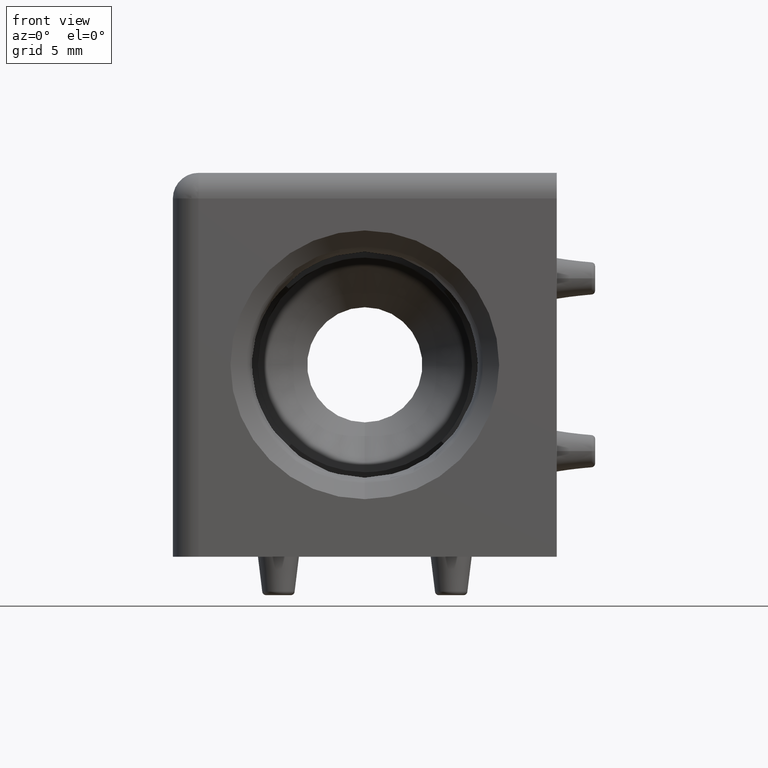
[diagram: clean part render]
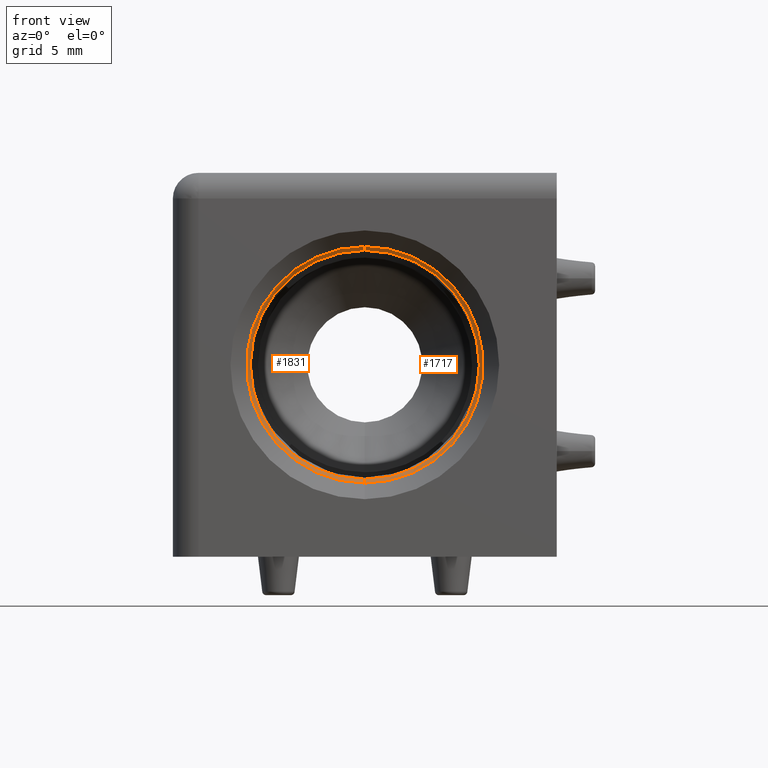
[diagram: same view with one multi-face feature highlighted, each face labeled with its STEP entity id]
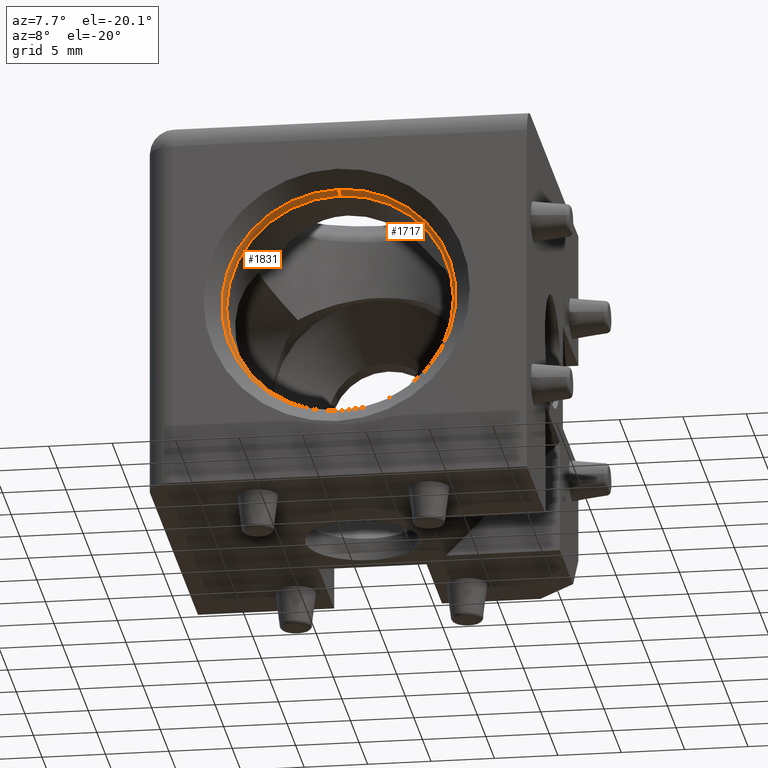
[diagram: same view with one multi-face feature highlighted, each face labeled with its STEP entity id]
A machine part, front view. The highlighted faces form ONE feature: a constant-radius fillet chain: 2 tangent blend faces with common blend radius 1 mm. The faces share edges in the B-rep.
A second angle (auxiliary view) of the same feature is appended — it is thin or edge-on in the first view.
Their STEP definitions:
[1] entity #1831 (Torus):
#451=FACE_OUTER_BOUND('',#585,.T.);
#585=EDGE_LOOP('',(#1680,#1681,#1682,#1683));
#588=CIRCLE('',#1837,0.999999999999999);
#590=CIRCLE('',#1839,0.999999999999999);
#604=CIRCLE('',#1858,9.24177190641642);
#688=CIRCLE('',#1976,8.94922136262741);
#733=VERTEX_POINT('',#2724);
#734=VERTEX_POINT('',#2725);
#735=VERTEX_POINT('',#2727);
#736=VERTEX_POINT('',#2729);
#893=EDGE_CURVE('',#733,#735,#588,.T.);
#895=EDGE_CURVE('',#734,#736,#590,.T.);
#913=EDGE_CURVE('',#735,#736,#604,.T.);
#1052=EDGE_CURVE('',#734,#733,#688,.T.);
#1680=ORIENTED_EDGE('',*,*,#893,.F.);
#1681=ORIENTED_EDGE('',*,*,#1052,.F.);
#1682=ORIENTED_EDGE('',*,*,#895,.T.);
#1683=ORIENTED_EDGE('',*,*,#913,.F.);
#1716=TOROIDAL_SURFACE('',#2095,9.94887868760297,1.);
#1831=ADVANCED_FACE('',(#451),#1716,.T.);
#1837=AXIS2_PLACEMENT_3D('',#2728,#2103,#2104);
#1839=AXIS2_PLACEMENT_3D('',#2731,#2107,#2108);
#1858=AXIS2_PLACEMENT_3D('',#2767,#2149,#2150);
#1976=AXIS2_PLACEMENT_3D('',#3223,#2430,#2431);
#2095=AXIS2_PLACEMENT_3D('',#3596,#2718,#2719);
#2103=DIRECTION('center_axis',(1.,0.,1.22464679914735E-16));
#2104=DIRECTION('ref_axis',(1.22464679914735E-16,0.,-1.));
#2107=DIRECTION('center_axis',(-1.,0.,0.));
#2108=DIRECTION('ref_axis',(0.,0.,1.));
#2149=DIRECTION('center_axis',(0.,1.,0.));
#2150=DIRECTION('ref_axis',(0.,0.,1.));
#2430=DIRECTION('center_axis',(0.,-1.,0.));
#2431=DIRECTION('ref_axis',(0.,0.,1.));
#2718=DIRECTION('center_axis',(0.,1.,0.));
#2719=DIRECTION('ref_axis',(0.,0.,1.));
#2724=CARTESIAN_POINT('',(0.,-13.0608420735378,-8.94922136262741));
#2725=CARTESIAN_POINT('',(1.09596352966028E-15,-13.0608420735378,8.94922136262741));
#2727=CARTESIAN_POINT('',(0.,-13.7417719064164,-9.24177190641642));
#2728=CARTESIAN_POINT('Origin',(1.21838624398783E-15,-13.0346651252299,
-9.94887868760297));
#2729=CARTESIAN_POINT('',(1.2088348887345E-15,-13.7417719064164,9.24177190641642));
#2731=CARTESIAN_POINT('Origin',(0.,-13.0346651252299,9.94887868760297));
#2767=CARTESIAN_POINT('Origin',(0.,-13.7417719064164,0.));
#3223=CARTESIAN_POINT('Origin',(0.,-13.0608420735378,0.));
#3596=CARTESIAN_POINT('Origin',(0.,-13.0346651252299,0.));
[2] entity #1717 (Torus):
#337=FACE_OUTER_BOUND('',#453,.T.);
#453=EDGE_LOOP('',(#1157,#1158,#1159,#1160));
#587=CIRCLE('',#1836,8.94922136262741);
#588=CIRCLE('',#1837,0.999999999999999);
#589=CIRCLE('',#1838,9.24177190641642);
#590=CIRCLE('',#1839,0.999999999999999);
#733=VERTEX_POINT('',#2724);
#734=VERTEX_POINT('',#2725);
#735=VERTEX_POINT('',#2727);
#736=VERTEX_POINT('',#2729);
#892=EDGE_CURVE('',#733,#734,#587,.T.);
#893=EDGE_CURVE('',#733,#735,#588,.T.);
#894=EDGE_CURVE('',#736,#735,#589,.T.);
#895=EDGE_CURVE('',#734,#736,#590,.T.);
#1157=ORIENTED_EDGE('',*,*,#892,.F.);
#1158=ORIENTED_EDGE('',*,*,#893,.T.);
#1159=ORIENTED_EDGE('',*,*,#894,.F.);
#1160=ORIENTED_EDGE('',*,*,#895,.F.);
#1687=TOROIDAL_SURFACE('',#1835,9.94887868760297,1.);
#1717=ADVANCED_FACE('',(#337),#1687,.T.);
#1835=AXIS2_PLACEMENT_3D('',#2723,#2099,#2100);
#1836=AXIS2_PLACEMENT_3D('',#2726,#2101,#2102);
#1837=AXIS2_PLACEMENT_3D('',#2728,#2103,#2104);
#1838=AXIS2_PLACEMENT_3D('',#2730,#2105,#2106);
#1839=AXIS2_PLACEMENT_3D('',#2731,#2107,#2108);
#2099=DIRECTION('center_axis',(0.,1.,0.));
#2100=DIRECTION('ref_axis',(0.,0.,1.));
#2101=DIRECTION('center_axis',(0.,-1.,0.));
#2102=DIRECTION('ref_axis',(0.,0.,1.));
#2103=DIRECTION('center_axis',(1.,0.,1.22464679914735E-16));
#2104=DIRECTION('ref_axis',(1.22464679914735E-16,0.,-1.));
#2105=DIRECTION('center_axis',(0.,1.,0.));
#2106=DIRECTION('ref_axis',(0.,0.,1.));
#2107=DIRECTION('center_axis',(-1.,0.,0.));
#2108=DIRECTION('ref_axis',(0.,0.,1.));
#2723=CARTESIAN_POINT('Origin',(0.,-13.0346651252299,0.));
#2724=CARTESIAN_POINT('',(0.,-13.0608420735378,-8.94922136262741));
#2725=CARTESIAN_POINT('',(1.09596352966028E-15,-13.0608420735378,8.94922136262741));
#2726=CARTESIAN_POINT('Origin',(0.,-13.0608420735378,0.));
#2727=CARTESIAN_POINT('',(0.,-13.7417719064164,-9.24177190641642));
#2728=CARTESIAN_POINT('Origin',(1.21838624398783E-15,-13.0346651252299,
-9.94887868760297));
#2729=CARTESIAN_POINT('',(1.2088348887345E-15,-13.7417719064164,9.24177190641642));
#2730=CARTESIAN_POINT('Origin',(0.,-13.7417719064164,0.));
#2731=CARTESIAN_POINT('Origin',(0.,-13.0346651252299,9.94887868760297));